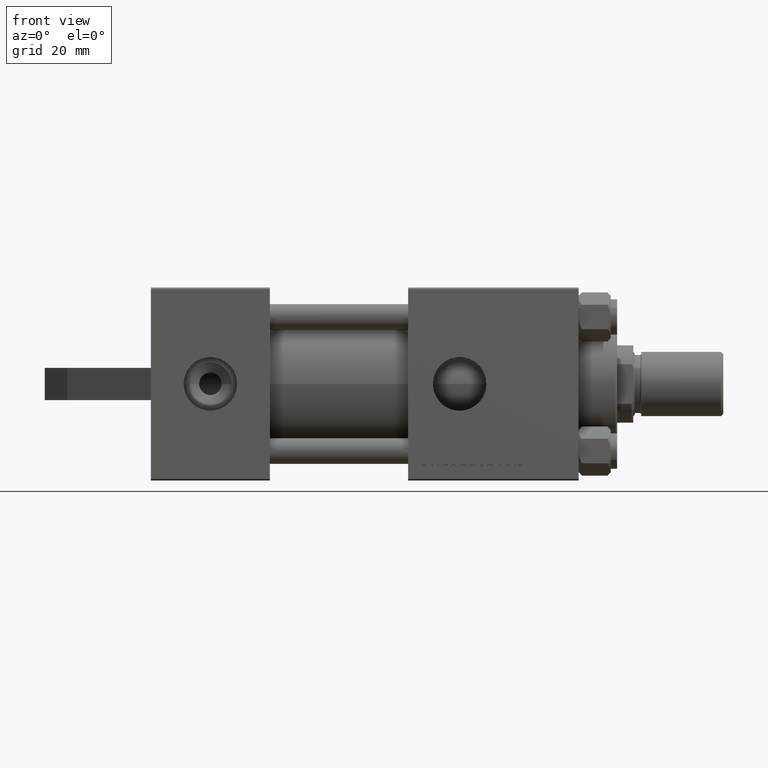
[diagram: clean part render]
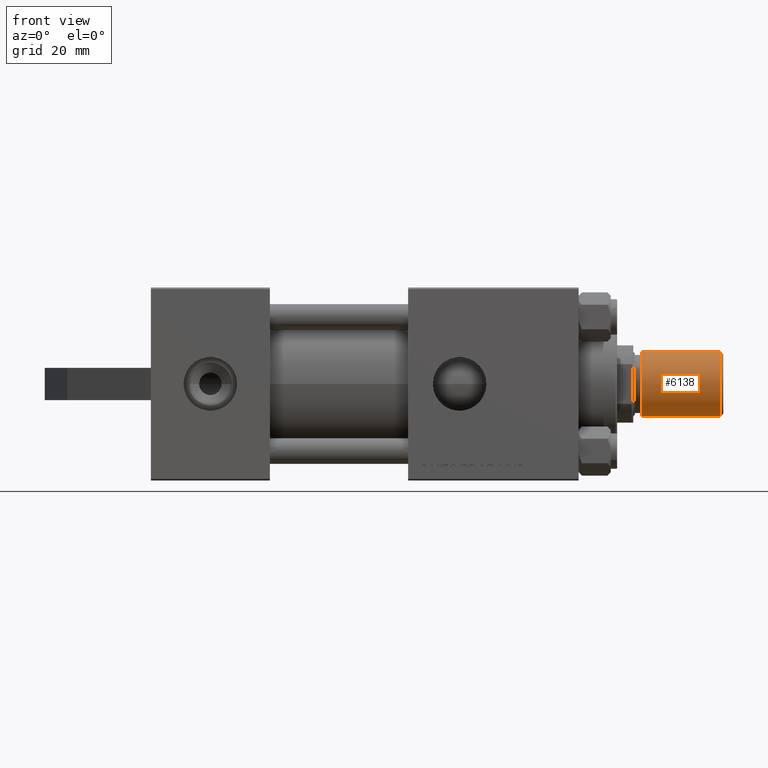
[diagram: same view with one face highlighted and labeled with its STEP entity id]
A machine part, front view. The second image highlights one B-rep face of the part: STEP entity #6138.
In plain terms, the highlighted cylindrical surface (edge-blend (fillet) strip) has radius 10 mm, axis along (1, 0, -0).
Its self-contained STEP definition (entity closure, byte-faithful):
#219 = ORIENTED_EDGE ( 'NONE', *, *, #6423, .F. ) ;
#260 = DIRECTION ( 'NONE',  ( -0.000000000000000000, -0.000000000000000000, 1.000000000000000000 ) ) ;
#752 = DIRECTION ( 'NONE',  ( -0.000000000000000000, -0.000000000000000000, -1.000000000000000000 ) ) ;
#1193 = DIRECTION ( 'NONE',  ( 1.000000000000000000, 0.000000000000000000, 0.000000000000000000 ) ) ;
#1532 = ORIENTED_EDGE ( 'NONE', *, *, #6474, .T. ) ;
#2297 = CARTESIAN_POINT ( 'NONE',  ( 10.00000000000000000, 1.224646799147353256E-15, 25.50000000000000000 ) ) ;
#2601 = AXIS2_PLACEMENT_3D ( 'NONE', #33428, #260, #1193 ) ;
#2823 = DIRECTION ( 'NONE',  ( -1.000000000000000000, 0.000000000000000000, 0.000000000000000000 ) ) ;
#2830 = CARTESIAN_POINT ( 'NONE',  ( -10.00000000000000000, 0.000000000000000000, 0.8000000000000055955 ) ) ;
#5728 = CARTESIAN_POINT ( 'NONE',  ( -10.00000000000000000, 0.000000000000000000, 25.50000000000000000 ) ) ;
#5855 = DIRECTION ( 'NONE',  ( 1.000000000000000000, 0.000000000000000000, 0.000000000000000000 ) ) ;
#6069 = LINE ( 'NONE', #44430, #14821 ) ;
#6138 = ADVANCED_FACE ( 'NONE', ( #23571 ), #34825, .T. ) ;
#6423 = EDGE_CURVE ( 'NONE', #39515, #28176, #35364, .T. ) ;
#6474 = EDGE_CURVE ( 'NONE', #39515, #19342, #35463, .T. ) ;
#6834 = AXIS2_PLACEMENT_3D ( 'NONE', #45357, #31467, #5855 ) ;
#10569 = ORIENTED_EDGE ( 'NONE', *, *, #29657, .F. ) ;
#14821 = VECTOR ( 'NONE', #752, 1000.000000000000000 ) ;
#16483 = EDGE_CURVE ( 'NONE', #19342, #45947, #37925, .T. ) ;
#17350 = CARTESIAN_POINT ( 'NONE',  ( -10.00000000000000000, 0.000000000000000000, 25.50000000000000000 ) ) ;
#19342 = VERTEX_POINT ( 'NONE', #2830 ) ;
#23571 = FACE_OUTER_BOUND ( 'NONE', #43560, .T. ) ;
#28176 = VERTEX_POINT ( 'NONE', #2297 ) ;
#29373 = AXIS2_PLACEMENT_3D ( 'NONE', #34600, #42336, #2823 ) ;
#29657 = EDGE_CURVE ( 'NONE', #28176, #45947, #6069, .T. ) ;
#30300 = CARTESIAN_POINT ( 'NONE',  ( 10.00000000000000000, 1.224646799147353256E-15, 0.8000000000000055955 ) ) ;
#31467 = DIRECTION ( 'NONE',  ( 0.000000000000000000, 0.000000000000000000, 1.000000000000000000 ) ) ;
#31593 = ORIENTED_EDGE ( 'NONE', *, *, #16483, .T. ) ;
#33135 = VECTOR ( 'NONE', #39452, 1000.000000000000000 ) ;
#33428 = CARTESIAN_POINT ( 'NONE',  ( 0.000000000000000000, 0.000000000000000000, 0.8000000000000055955 ) ) ;
#34600 = CARTESIAN_POINT ( 'NONE',  ( 0.000000000000000000, 0.000000000000000000, 25.50000000000000000 ) ) ;
#34825 = CYLINDRICAL_SURFACE ( 'NONE', #29373, 10.00000000000000000 ) ;
#35364 = CIRCLE ( 'NONE', #6834, 10.00000000000000000 ) ;
#35463 = LINE ( 'NONE', #17350, #33135 ) ;
#37925 = CIRCLE ( 'NONE', #2601, 10.00000000000000000 ) ;
#39452 = DIRECTION ( 'NONE',  ( -0.000000000000000000, -0.000000000000000000, -1.000000000000000000 ) ) ;
#39515 = VERTEX_POINT ( 'NONE', #5728 ) ;
#42336 = DIRECTION ( 'NONE',  ( -0.000000000000000000, -0.000000000000000000, -1.000000000000000000 ) ) ;
#43560 = EDGE_LOOP ( 'NONE', ( #10569, #219, #1532, #31593 ) ) ;
#44430 = CARTESIAN_POINT ( 'NONE',  ( 10.00000000000000000, 1.224646799147353256E-15, 25.50000000000000000 ) ) ;
#45357 = CARTESIAN_POINT ( 'NONE',  ( 0.000000000000000000, 0.000000000000000000, 25.50000000000000000 ) ) ;
#45947 = VERTEX_POINT ( 'NONE', #30300 ) ;